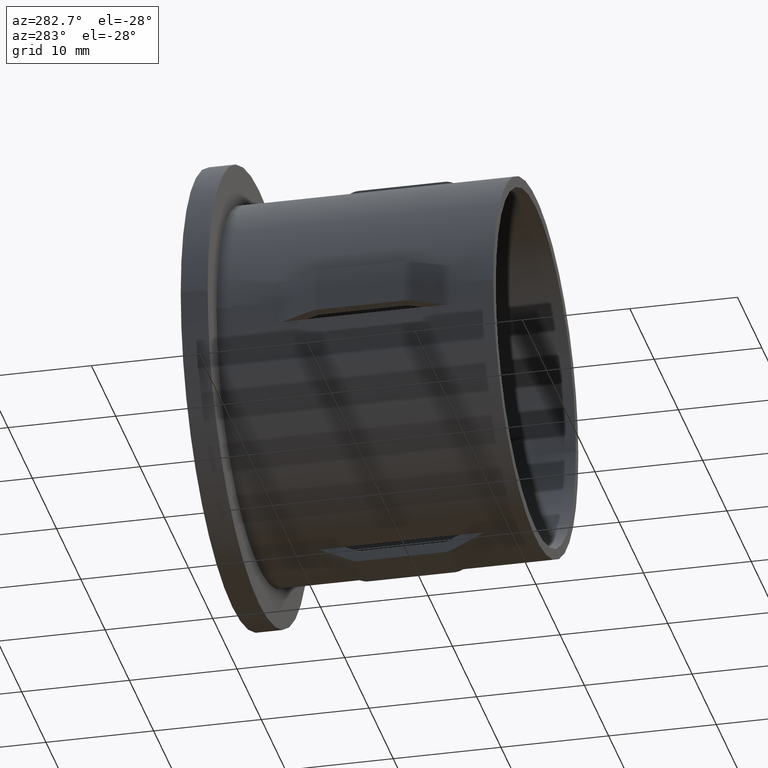
[diagram: clean part render]
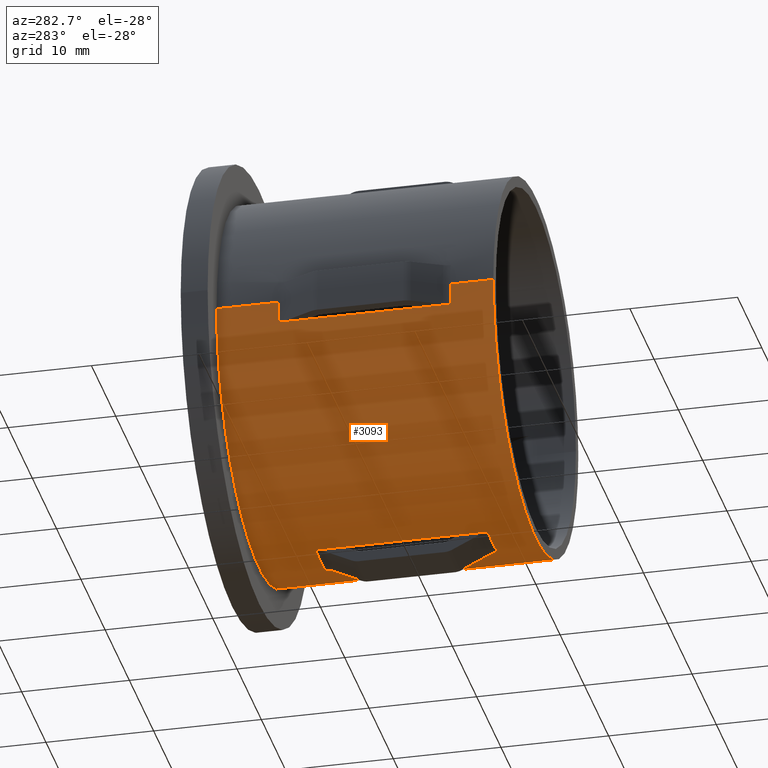
[diagram: same view with one face highlighted and labeled with its STEP entity id]
A machine part, auxiliary view. The second image highlights one B-rep face of the part: STEP entity #3093.
In plain terms, the highlighted cylindrical surface (partial cylindrical patch) has radius 17.5 mm, axis along (-0, 1, -0).
Its self-contained STEP definition (entity closure, byte-faithful):
#7 = EDGE_CURVE ( 'NONE', #15353, #7543, #9461, .T. ) ;
#59 = CARTESIAN_POINT ( 'NONE',  ( 2.000000000000004400, 47.45815458154230300, -17.38533865071371300 ) ) ;
#81 = CARTESIAN_POINT ( 'NONE',  ( -17.38533865071371000, 20.00000000000000000, -2.000000000000000000 ) ) ;
#129 = LINE ( 'NONE', #9731, #3190 ) ;
#282 = VECTOR ( 'NONE', #3644, 1000.000000000000000 ) ;
#326 = ORIENTED_EDGE ( 'NONE', *, *, #11196, .F. ) ;
#344 = DIRECTION ( 'NONE',  ( -1.000000000000000000, -1.486905836551548800E-016, 0.0000000000000000000 ) ) ;
#379 = VERTEX_POINT ( 'NONE', #12679 ) ;
#415 = VECTOR ( 'NONE', #13262, 1000.000000000000000 ) ;
#617 = CARTESIAN_POINT ( 'NONE',  ( 1.160965165591693700E-015, 19.99999999999999300, 0.0000000000000000000 ) ) ;
#633 = ORIENTED_EDGE ( 'NONE', *, *, #14934, .F. ) ;
#755 = CARTESIAN_POINT ( 'NONE',  ( -17.50000000000000000, 28.19999999999999600, 0.0000000000000000000 ) ) ;
#786 = EDGE_CURVE ( 'NONE', #12517, #3932, #11193, .T. ) ;
#1085 = EDGE_CURVE ( 'NONE', #8535, #10114, #129, .T. ) ;
#1109 = EDGE_CURVE ( 'NONE', #10114, #6541, #12680, .T. ) ;
#1166 = DIRECTION ( 'NONE',  ( -1.714505518806297100E-016, 1.000000000000000000, -0.0000000000000000000 ) ) ;
#1245 = ORIENTED_EDGE ( 'NONE', *, *, #7, .T. ) ;
#1266 = VERTEX_POINT ( 'NONE', #1580 ) ;
#1307 = DIRECTION ( 'NONE',  ( -1.714505518806297100E-016, 1.000000000000000000, -0.0000000000000000000 ) ) ;
#1400 = VERTEX_POINT ( 'NONE', #13025 ) ;
#1488 = VERTEX_POINT ( 'NONE', #6290 ) ;
#1580 = CARTESIAN_POINT ( 'NONE',  ( -1.999999999999996700, 3.999999999999993300, -17.38533865071371300 ) ) ;
#1782 = DIRECTION ( 'NONE',  ( -1.714505518806297100E-016, 1.000000000000000000, -0.0000000000000000000 ) ) ;
#1825 = AXIS2_PLACEMENT_3D ( 'NONE', #12454, #13558, #344 ) ;
#1854 = DIRECTION ( 'NONE',  ( -1.714505518806297100E-016, 1.000000000000000000, -0.0000000000000000000 ) ) ;
#2020 = EDGE_LOOP ( 'NONE', ( #9425, #10400, #12342, #12921, #5175, #3308, #633, #11094, #5082, #326, #6634, #11921, #3198, #7549, #1245, #13075 ) ) ;
#2056 = EDGE_CURVE ( 'NONE', #10974, #1488, #9038, .T. ) ;
#2071 = VERTEX_POINT ( 'NONE', #15468 ) ;
#2146 = CIRCLE ( 'NONE', #3920, 17.49999999999999600 ) ;
#2376 = CARTESIAN_POINT ( 'NONE',  ( 17.38533865071371700, 20.00000000000000000, -2.000000000000000000 ) ) ;
#2405 = ORIENTED_EDGE ( 'NONE', *, *, #13993, .F. ) ;
#2578 = VERTEX_POINT ( 'NONE', #8726 ) ;
#2746 = CARTESIAN_POINT ( 'NONE',  ( -17.38533865071371000, 47.45815458154230300, -2.000000000000000000 ) ) ;
#2766 = LINE ( 'NONE', #2746, #9005 ) ;
#2781 = VECTOR ( 'NONE', #8990, 1000.000000000000000 ) ;
#2793 = VECTOR ( 'NONE', #9213, 1000.000000000000000 ) ;
#2859 = DIRECTION ( 'NONE',  ( -1.714505518806297100E-016, 1.000000000000000000, -0.0000000000000000000 ) ) ;
#2944 = EDGE_CURVE ( 'NONE', #11060, #10036, #13579, .T. ) ;
#2968 = AXIS2_PLACEMENT_3D ( 'NONE', #15458, #8372, #12202 ) ;
#3011 = DIRECTION ( 'NONE',  ( -1.000000000000000000, -1.486905836551548800E-016, 0.0000000000000000000 ) ) ;
#3068 = DIRECTION ( 'NONE',  ( -1.000000000000000000, -1.982541115402065600E-016, 0.0000000000000000000 ) ) ;
#3093 = ADVANCED_FACE ( 'NONE', ( #6734, #14886 ), #15267, .T. ) ;
#3190 = VECTOR ( 'NONE', #15724, 1000.000000000000000 ) ;
#3198 = ORIENTED_EDGE ( 'NONE', *, *, #4654, .T. ) ;
#3211 = ORIENTED_EDGE ( 'NONE', *, *, #1109, .T. ) ;
#3232 = CARTESIAN_POINT ( 'NONE',  ( 17.38533865071371700, 47.45815458154230300, -2.000000000000000000 ) ) ;
#3308 = ORIENTED_EDGE ( 'NONE', *, *, #5034, .F. ) ;
#3321 = CARTESIAN_POINT ( 'NONE',  ( 17.49999999999999600, 19.99999999999999600, 2.143131898507867900E-015 ) ) ;
#3388 = CARTESIAN_POINT ( 'NONE',  ( -17.49999999999999600, 3.999999999999994200, 0.0000000000000000000 ) ) ;
#3644 = DIRECTION ( 'NONE',  ( 0.0000000000000000000, -1.000000000000000000, 0.0000000000000000000 ) ) ;
#3646 = DIRECTION ( 'NONE',  ( -1.000000000000000000, -1.486905836551548800E-016, 0.0000000000000000000 ) ) ;
#3685 = VECTOR ( 'NONE', #15310, 1000.000000000000000 ) ;
#3912 = VERTEX_POINT ( 'NONE', #9653 ) ;
#3920 = AXIS2_PLACEMENT_3D ( 'NONE', #4849, #1307, #12044 ) ;
#3932 = VERTEX_POINT ( 'NONE', #4665 ) ;
#4037 = LINE ( 'NONE', #12048, #415 ) ;
#4056 = CARTESIAN_POINT ( 'NONE',  ( 17.50000000000000000, 28.20000000000000300, 2.143131898507868200E-015 ) ) ;
#4148 = EDGE_CURVE ( 'NONE', #1488, #14305, #11904, .T. ) ;
#4233 = CARTESIAN_POINT ( 'NONE',  ( 17.50000000000000000, 28.20000000000000300, 2.143131898507868200E-015 ) ) ;
#4332 = ORIENTED_EDGE ( 'NONE', *, *, #2944, .F. ) ;
#4336 = CARTESIAN_POINT ( 'NONE',  ( -17.50000000000000000, 28.19999999999999600, 0.0000000000000000000 ) ) ;
#4352 = CARTESIAN_POINT ( 'NONE',  ( 17.50000000000000400, -4.690622940425938900E-016, 2.143131898507868600E-015 ) ) ;
#4441 = AXIS2_PLACEMENT_3D ( 'NONE', #617, #1854, #10307 ) ;
#4654 = EDGE_CURVE ( 'NONE', #15417, #1400, #7883, .T. ) ;
#4665 = CARTESIAN_POINT ( 'NONE',  ( -17.50000000000000000, 25.69999999999999200, 0.0000000000000000000 ) ) ;
#4733 = VECTOR ( 'NONE', #5687, 1000.000000000000000 ) ;
#4849 = CARTESIAN_POINT ( 'NONE',  ( 1.160965165591693700E-015, 19.99999999999999300, 0.0000000000000000000 ) ) ;
#4955 = EDGE_CURVE ( 'NONE', #10036, #3912, #8051, .T. ) ;
#4997 = DIRECTION ( 'NONE',  ( -0.0000000000000000000, -1.000000000000000000, -0.0000000000000000000 ) ) ;
#5034 = EDGE_CURVE ( 'NONE', #2578, #10398, #2766, .T. ) ;
#5082 = ORIENTED_EDGE ( 'NONE', *, *, #786, .T. ) ;
#5175 = ORIENTED_EDGE ( 'NONE', *, *, #13336, .F. ) ;
#5208 = AXIS2_PLACEMENT_3D ( 'NONE', #9029, #6531, #3068 ) ;
#5374 = EDGE_LOOP ( 'NONE', ( #2405, #10639, #11128, #3211, #9014, #14002, #15521, #4332 ) ) ;
#5463 = VECTOR ( 'NONE', #12695, 1000.000000000000000 ) ;
#5503 = CIRCLE ( 'NONE', #8607, 17.50000000000000000 ) ;
#5663 = VERTEX_POINT ( 'NONE', #7693 ) ;
#5687 = DIRECTION ( 'NONE',  ( -1.714505518806297100E-016, 1.000000000000000000, -0.0000000000000000000 ) ) ;
#5804 = DIRECTION ( 'NONE',  ( 0.0000000000000000000, -1.000000000000000000, 0.0000000000000000000 ) ) ;
#5984 = DIRECTION ( 'NONE',  ( -1.714505518806297100E-016, 1.000000000000000000, -0.0000000000000000000 ) ) ;
#6277 = EDGE_CURVE ( 'NONE', #6541, #1266, #12995, .T. ) ;
#6282 = CARTESIAN_POINT ( 'NONE',  ( -1.999999999999996700, 20.00000000000000000, -17.38533865071371300 ) ) ;
#6290 = CARTESIAN_POINT ( 'NONE',  ( -17.49999999999999600, -6.469831609864634800E-015, 0.0000000000000000000 ) ) ;
#6531 = DIRECTION ( 'NONE',  ( -1.714505518806297100E-016, 1.000000000000000000, -0.0000000000000000000 ) ) ;
#6541 = VERTEX_POINT ( 'NONE', #14285 ) ;
#6634 = ORIENTED_EDGE ( 'NONE', *, *, #7268, .F. ) ;
#6734 = FACE_OUTER_BOUND ( 'NONE', #2020, .T. ) ;
#7017 = CARTESIAN_POINT ( 'NONE',  ( -1.999999999999996700, 17.35700652122430300, -17.38533865071371300 ) ) ;
#7103 = VECTOR ( 'NONE', #4997, 1000.000000000000000 ) ;
#7268 = EDGE_CURVE ( 'NONE', #8085, #14939, #13355, .T. ) ;
#7386 = DIRECTION ( 'NONE',  ( -1.714505518806297100E-016, 1.000000000000000000, -0.0000000000000000000 ) ) ;
#7492 = CARTESIAN_POINT ( 'NONE',  ( -1.999999999999996700, 47.45815458154230300, -17.38533865071371300 ) ) ;
#7543 = VERTEX_POINT ( 'NONE', #12053 ) ;
#7549 = ORIENTED_EDGE ( 'NONE', *, *, #15399, .T. ) ;
#7693 = CARTESIAN_POINT ( 'NONE',  ( -17.38533865071371000, 3.999999999999993300, -2.000000000000000000 ) ) ;
#7883 = LINE ( 'NONE', #9053, #2781 ) ;
#7994 = EDGE_CURVE ( 'NONE', #2071, #12517, #13522, .T. ) ;
#8051 = LINE ( 'NONE', #14489, #7103 ) ;
#8085 = VERTEX_POINT ( 'NONE', #3321 ) ;
#8154 = CIRCLE ( 'NONE', #10439, 17.50000000000000000 ) ;
#8372 = DIRECTION ( 'NONE',  ( -1.714505518806297100E-016, 1.000000000000000000, -0.0000000000000000000 ) ) ;
#8399 = EDGE_CURVE ( 'NONE', #379, #8535, #2146, .T. ) ;
#8425 = CARTESIAN_POINT ( 'NONE',  ( 4.589976203204287100E-015, -3.469446951953614200E-015, 0.0000000000000000000 ) ) ;
#8535 = VERTEX_POINT ( 'NONE', #6282 ) ;
#8571 = DIRECTION ( 'NONE',  ( -0.0000000000000000000, -1.000000000000000000, -0.0000000000000000000 ) ) ;
#8607 = AXIS2_PLACEMENT_3D ( 'NONE', #14642, #7386, #3646 ) ;
#8668 = EDGE_CURVE ( 'NONE', #10974, #15109, #8942, .T. ) ;
#8670 = CARTESIAN_POINT ( 'NONE',  ( -17.38533865071371000, 20.00000000000000000, -2.000000000000000000 ) ) ;
#8723 = LINE ( 'NONE', #3232, #9672 ) ;
#8726 = CARTESIAN_POINT ( 'NONE',  ( -17.38533865071371000, 17.35700652122431000, -2.000000000000000000 ) ) ;
#8822 = DIRECTION ( 'NONE',  ( -0.0000000000000000000, -1.000000000000000000, -0.0000000000000000000 ) ) ;
#8863 = CIRCLE ( 'NONE', #4441, 17.49999999999999600 ) ;
#8942 = LINE ( 'NONE', #4056, #14435 ) ;
#8990 = DIRECTION ( 'NONE',  ( -0.0000000000000000000, -1.000000000000000000, -0.0000000000000000000 ) ) ;
#9005 = VECTOR ( 'NONE', #10038, 1000.000000000000000 ) ;
#9014 = ORIENTED_EDGE ( 'NONE', *, *, #6277, .T. ) ;
#9029 = CARTESIAN_POINT ( 'NONE',  ( 1.160965165591693700E-015, 19.99999999999999300, 0.0000000000000000000 ) ) ;
#9038 = CIRCLE ( 'NONE', #15234, 17.50000000000000000 ) ;
#9053 = CARTESIAN_POINT ( 'NONE',  ( 17.38533865071371700, 20.00000000000000000, -2.000000000000000000 ) ) ;
#9072 = CARTESIAN_POINT ( 'NONE',  ( 2.000000000000004400, 17.35700652122431000, -17.38533865071371300 ) ) ;
#9213 = DIRECTION ( 'NONE',  ( -1.714505518806297100E-016, 1.000000000000000000, -0.0000000000000000000 ) ) ;
#9425 = ORIENTED_EDGE ( 'NONE', *, *, #8668, .F. ) ;
#9461 = LINE ( 'NONE', #14055, #5463 ) ;
#9524 = AXIS2_PLACEMENT_3D ( 'NONE', #12347, #1782, #3011 ) ;
#9653 = CARTESIAN_POINT ( 'NONE',  ( 2.000000000000004400, 3.999999999999993300, -17.38533865071371300 ) ) ;
#9672 = VECTOR ( 'NONE', #5804, 1000.000000000000000 ) ;
#9731 = CARTESIAN_POINT ( 'NONE',  ( -1.999999999999996700, 20.00000000000000000, -17.38533865071371300 ) ) ;
#9911 = VECTOR ( 'NONE', #8822, 1000.000000000000000 ) ;
#10036 = VERTEX_POINT ( 'NONE', #10246 ) ;
#10038 = DIRECTION ( 'NONE',  ( 0.0000000000000000000, -1.000000000000000000, 0.0000000000000000000 ) ) ;
#10114 = VERTEX_POINT ( 'NONE', #7017 ) ;
#10246 = CARTESIAN_POINT ( 'NONE',  ( 2.000000000000004400, 6.642993478775674800, -17.38533865071371300 ) ) ;
#10307 = DIRECTION ( 'NONE',  ( -1.000000000000000000, -1.982541115402065600E-016, 0.0000000000000000000 ) ) ;
#10398 = VERTEX_POINT ( 'NONE', #11506 ) ;
#10400 = ORIENTED_EDGE ( 'NONE', *, *, #2056, .T. ) ;
#10439 = AXIS2_PLACEMENT_3D ( 'NONE', #15580, #5984, #13127 ) ;
#10639 = ORIENTED_EDGE ( 'NONE', *, *, #8399, .T. ) ;
#10917 = CARTESIAN_POINT ( 'NONE',  ( 17.50000000000000000, 25.69999999999999900, 2.143131898507868200E-015 ) ) ;
#10974 = VERTEX_POINT ( 'NONE', #4352 ) ;
#11060 = VERTEX_POINT ( 'NONE', #9072 ) ;
#11094 = ORIENTED_EDGE ( 'NONE', *, *, #7994, .T. ) ;
#11128 = ORIENTED_EDGE ( 'NONE', *, *, #1085, .T. ) ;
#11193 = LINE ( 'NONE', #755, #4733 ) ;
#11196 = EDGE_CURVE ( 'NONE', #14939, #3932, #8154, .T. ) ;
#11449 = LINE ( 'NONE', #8670, #9911 ) ;
#11506 = CARTESIAN_POINT ( 'NONE',  ( -17.38533865071371000, 6.642993478775674800, -2.000000000000000000 ) ) ;
#11612 = VECTOR ( 'NONE', #8571, 1000.000000000000000 ) ;
#11848 = DIRECTION ( 'NONE',  ( -1.000000000000000000, -1.714505518806297300E-016, 0.0000000000000000000 ) ) ;
#11904 = LINE ( 'NONE', #4336, #2793 ) ;
#11921 = ORIENTED_EDGE ( 'NONE', *, *, #12223, .T. ) ;
#12043 = VECTOR ( 'NONE', #15207, 1000.000000000000000 ) ;
#12044 = DIRECTION ( 'NONE',  ( -1.000000000000000000, -1.982541115402065600E-016, 0.0000000000000000000 ) ) ;
#12048 = CARTESIAN_POINT ( 'NONE',  ( 2.000000000000004400, 20.00000000000000000, -17.38533865071371300 ) ) ;
#12053 = CARTESIAN_POINT ( 'NONE',  ( 17.38533865071371700, 3.999999999999993300, -2.000000000000000000 ) ) ;
#12202 = DIRECTION ( 'NONE',  ( -1.000000000000000000, -1.982541115402065400E-016, 0.0000000000000000000 ) ) ;
#12223 = EDGE_CURVE ( 'NONE', #8085, #15417, #8863, .T. ) ;
#12342 = ORIENTED_EDGE ( 'NONE', *, *, #4148, .T. ) ;
#12347 = CARTESIAN_POINT ( 'NONE',  ( 3.904173995681768100E-015, 3.999999999999996400, 0.0000000000000000000 ) ) ;
#12454 = CARTESIAN_POINT ( 'NONE',  ( 3.904173995681768100E-015, 3.999999999999996400, 0.0000000000000000000 ) ) ;
#12483 = VECTOR ( 'NONE', #13503, 1000.000000000000000 ) ;
#12495 = EDGE_CURVE ( 'NONE', #3912, #1266, #12890, .T. ) ;
#12517 = VERTEX_POINT ( 'NONE', #12604 ) ;
#12604 = CARTESIAN_POINT ( 'NONE',  ( -17.49999999999999600, 19.99999999999998900, 0.0000000000000000000 ) ) ;
#12679 = CARTESIAN_POINT ( 'NONE',  ( 2.000000000000004000, 19.99999999999999300, -17.38533865071370600 ) ) ;
#12680 = LINE ( 'NONE', #7492, #12483 ) ;
#12695 = DIRECTION ( 'NONE',  ( -0.0000000000000000000, -1.000000000000000000, -0.0000000000000000000 ) ) ;
#12890 = CIRCLE ( 'NONE', #9524, 17.50000000000000000 ) ;
#12921 = ORIENTED_EDGE ( 'NONE', *, *, #15022, .F. ) ;
#12995 = LINE ( 'NONE', #14092, #3685 ) ;
#13025 = CARTESIAN_POINT ( 'NONE',  ( 17.38533865071371700, 17.35700652122429900, -2.000000000000000000 ) ) ;
#13075 = ORIENTED_EDGE ( 'NONE', *, *, #15591, .F. ) ;
#13127 = DIRECTION ( 'NONE',  ( -1.000000000000000000, -1.982541115402065400E-016, 0.0000000000000000000 ) ) ;
#13262 = DIRECTION ( 'NONE',  ( -0.0000000000000000000, -1.000000000000000000, -0.0000000000000000000 ) ) ;
#13336 = EDGE_CURVE ( 'NONE', #10398, #5663, #11449, .T. ) ;
#13355 = LINE ( 'NONE', #4233, #12043 ) ;
#13503 = DIRECTION ( 'NONE',  ( 0.0000000000000000000, -1.000000000000000000, 0.0000000000000000000 ) ) ;
#13522 = CIRCLE ( 'NONE', #5208, 17.49999999999999600 ) ;
#13558 = DIRECTION ( 'NONE',  ( -1.714505518806297100E-016, 1.000000000000000000, -0.0000000000000000000 ) ) ;
#13579 = LINE ( 'NONE', #59, #282 ) ;
#13993 = EDGE_CURVE ( 'NONE', #379, #11060, #4037, .T. ) ;
#14002 = ORIENTED_EDGE ( 'NONE', *, *, #12495, .F. ) ;
#14055 = CARTESIAN_POINT ( 'NONE',  ( 17.38533865071371700, 20.00000000000000000, -2.000000000000000000 ) ) ;
#14056 = CIRCLE ( 'NONE', #1825, 17.50000000000000000 ) ;
#14092 = CARTESIAN_POINT ( 'NONE',  ( -1.999999999999996700, 20.00000000000000000, -17.38533865071371300 ) ) ;
#14285 = CARTESIAN_POINT ( 'NONE',  ( -1.999999999999996700, 6.642993478775676600, -17.38533865071371300 ) ) ;
#14305 = VERTEX_POINT ( 'NONE', #3388 ) ;
#14435 = VECTOR ( 'NONE', #2859, 1000.000000000000000 ) ;
#14489 = CARTESIAN_POINT ( 'NONE',  ( 2.000000000000004400, 20.00000000000000000, -17.38533865071371300 ) ) ;
#14642 = CARTESIAN_POINT ( 'NONE',  ( 3.904173995681768100E-015, 3.999999999999996400, 0.0000000000000000000 ) ) ;
#14812 = LINE ( 'NONE', #81, #11612 ) ;
#14823 = CARTESIAN_POINT ( 'NONE',  ( 17.50000000000000400, 3.999999999999999100, 2.143131898507868600E-015 ) ) ;
#14886 = FACE_BOUND ( 'NONE', #5374, .T. ) ;
#14934 = EDGE_CURVE ( 'NONE', #2071, #2578, #14812, .T. ) ;
#14939 = VERTEX_POINT ( 'NONE', #10917 ) ;
#15022 = EDGE_CURVE ( 'NONE', #5663, #14305, #14056, .T. ) ;
#15109 = VERTEX_POINT ( 'NONE', #14823 ) ;
#15207 = DIRECTION ( 'NONE',  ( -1.714505518806297100E-016, 1.000000000000000000, -0.0000000000000000000 ) ) ;
#15234 = AXIS2_PLACEMENT_3D ( 'NONE', #8425, #1166, #11848 ) ;
#15267 = CYLINDRICAL_SURFACE ( 'NONE', #2968, 17.50000000000000000 ) ;
#15310 = DIRECTION ( 'NONE',  ( -0.0000000000000000000, -1.000000000000000000, -0.0000000000000000000 ) ) ;
#15345 = CARTESIAN_POINT ( 'NONE',  ( 17.38533865071371700, 6.642993478775679300, -2.000000000000000000 ) ) ;
#15353 = VERTEX_POINT ( 'NONE', #15345 ) ;
#15399 = EDGE_CURVE ( 'NONE', #1400, #15353, #8723, .T. ) ;
#15417 = VERTEX_POINT ( 'NONE', #2376 ) ;
#15458 = CARTESIAN_POINT ( 'NONE',  ( -2.449293598294708900E-016, 28.19999999999999900, 0.0000000000000000000 ) ) ;
#15468 = CARTESIAN_POINT ( 'NONE',  ( -17.38533865071371000, 20.00000000000000000, -2.000000000000000000 ) ) ;
#15521 = ORIENTED_EDGE ( 'NONE', *, *, #4955, .F. ) ;
#15580 = CARTESIAN_POINT ( 'NONE',  ( 1.836970198721037300E-016, 25.69999999999999600, 0.0000000000000000000 ) ) ;
#15591 = EDGE_CURVE ( 'NONE', #15109, #7543, #5503, .T. ) ;
#15724 = DIRECTION ( 'NONE',  ( -0.0000000000000000000, -1.000000000000000000, -0.0000000000000000000 ) ) ;